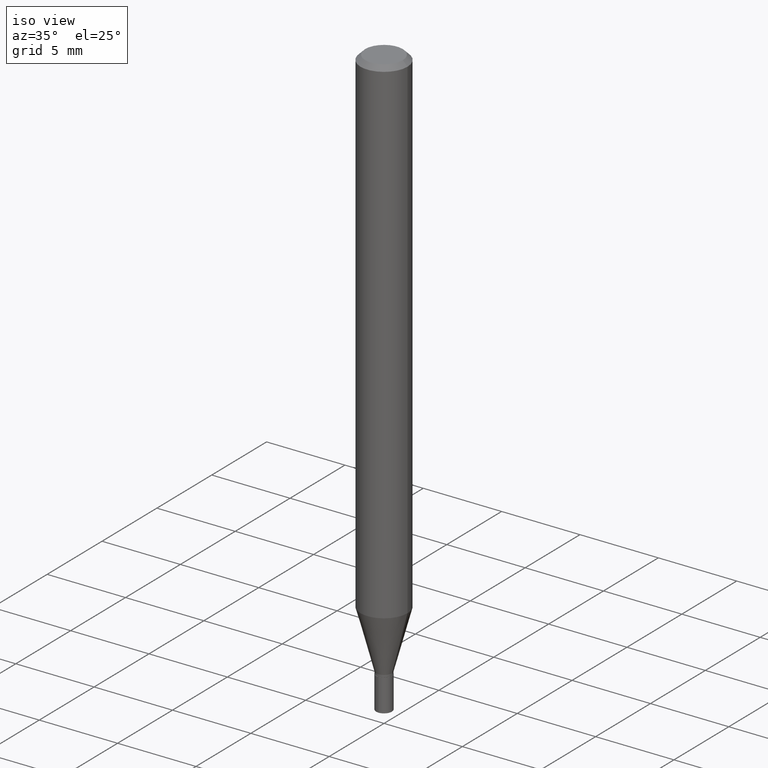
[diagram: clean part render]
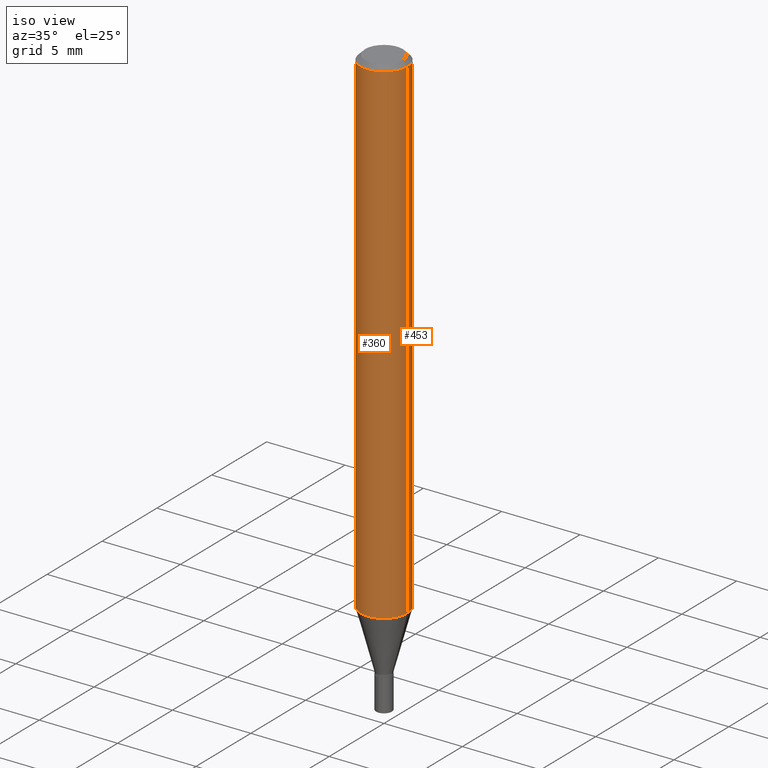
[diagram: same view with one multi-face feature highlighted, each face labeled with its STEP entity id]
A machine part, iso view. The highlighted faces form ONE feature: a constant-radius fillet chain: 2 tangent blend faces with common blend radius 1.4999 mm. The faces share edges in the B-rep.
Their STEP definitions:
[1] entity #360 (Cylinder):
#47 = DIRECTION ( 'NONE',  ( -2.445468806185136597E-29, 3.491481338843145583E-15, 1.000000000000000000 ) ) ;
#51 = ORIENTED_EDGE ( 'NONE', *, *, #279, .F. ) ;
#84 = ORIENTED_EDGE ( 'NONE', *, *, #186, .F. ) ;
#98 = DIRECTION ( 'NONE',  ( -2.445468806185136597E-29, 3.491481338843145583E-15, 1.000000000000000000 ) ) ;
#113 = DIRECTION ( 'NONE',  ( -2.445468806185136597E-29, 3.491481338843145583E-15, 1.000000000000000000 ) ) ;
#117 = ORIENTED_EDGE ( 'NONE', *, *, #483, .T. ) ;
#129 = CYLINDRICAL_SURFACE ( 'NONE', #166, 0.05905000000000007465 ) ;
#140 = CARTESIAN_POINT ( 'NONE',  ( -0.05904999999999999832, -1.788007513125965164E-15, -0.01181000000000007565 ) ) ;
#143 = VECTOR ( 'NONE', #339, 39.37007874015748143 ) ;
#156 = DIRECTION ( 'NONE',  ( 1.000000000000000000, -6.982962677686266711E-15, 4.876176775795936353E-29 ) ) ;
#163 = CARTESIAN_POINT ( 'NONE',  ( 2.888098660104664642E-31, -4.123439461173780879E-17, -0.01181000000000007565 ) ) ;
#166 = AXIS2_PLACEMENT_3D ( 'NONE', #172, #47, #156 ) ;
#172 = CARTESIAN_POINT ( 'NONE',  ( 0.000000000000000000, 0.000000000000000000, 0.000000000000000000 ) ) ;
#174 = CARTESIAN_POINT ( 'NONE',  ( 0.05905000000000015098, -4.786275548690248872E-15, -1.252743800722164513 ) ) ;
#177 = LINE ( 'NONE', #489, #415 ) ;
#186 = EDGE_CURVE ( 'NONE', #238, #309, #375, .T. ) ;
#199 = EDGE_LOOP ( 'NONE', ( #51, #117, #226, #84 ) ) ;
#226 = ORIENTED_EDGE ( 'NONE', *, *, #449, .T. ) ;
#238 = VERTEX_POINT ( 'NONE', #140 ) ;
#241 = DIRECTION ( 'NONE',  ( 1.000000000000000000, -6.982962677686266711E-15, 0.000000000000000000 ) ) ;
#249 = CARTESIAN_POINT ( 'NONE',  ( 0.05904999999999999832, -4.535783407291118600E-16, -0.01181000000000007565 ) ) ;
#262 = FACE_OUTER_BOUND ( 'NONE', #199, .T. ) ;
#279 = EDGE_CURVE ( 'NONE', #427, #238, #177, .T. ) ;
#280 = CARTESIAN_POINT ( 'NONE',  ( 0.05905000000000007465, -4.123439461173745750E-16, 2.879382386107504074E-30 ) ) ;
#309 = VERTEX_POINT ( 'NONE', #249 ) ;
#338 = DIRECTION ( 'NONE',  ( 1.000000000000000000, -6.982962677686271444E-15, 0.000000000000000000 ) ) ;
#339 = DIRECTION ( 'NONE',  ( -2.445468806185136877E-29, 3.491481338843145188E-15, 1.000000000000000000 ) ) ;
#342 = CIRCLE ( 'NONE', #354, 0.05905000000000015098 ) ;
#348 = CARTESIAN_POINT ( 'NONE',  ( -0.05905000000000015098, -3.954356117106533670E-15, -1.252743800722164513 ) ) ;
#354 = AXIS2_PLACEMENT_3D ( 'NONE', #455, #113, #338 ) ;
#360 = ADVANCED_FACE ( 'NONE', ( #262 ), #129, .T. ) ;
#363 = AXIS2_PLACEMENT_3D ( 'NONE', #163, #98, #241 ) ;
#375 = CIRCLE ( 'NONE', #363, 0.05904999999999999832 ) ;
#410 = LINE ( 'NONE', #280, #143 ) ;
#415 = VECTOR ( 'NONE', #452, 39.37007874015748143 ) ;
#427 = VERTEX_POINT ( 'NONE', #348 ) ;
#446 = VERTEX_POINT ( 'NONE', #174 ) ;
#449 = EDGE_CURVE ( 'NONE', #446, #309, #410, .T. ) ;
#452 = DIRECTION ( 'NONE',  ( -2.445468806185136877E-29, 3.491481338843145188E-15, 1.000000000000000000 ) ) ;
#455 = CARTESIAN_POINT ( 'NONE',  ( 3.063545886807862296E-29, -4.373931602572873162E-15, -1.252743800722164513 ) ) ;
#483 = EDGE_CURVE ( 'NONE', #427, #446, #342, .T. ) ;
#489 = CARTESIAN_POINT ( 'NONE',  ( -0.05905000000000007465, 4.195754854663396902E-16, -2.904631170795525395E-30 ) ) ;
[2] entity #453 (Cylinder):
#2 = CIRCLE ( 'NONE', #442, 0.05905000000000015098 ) ;
#5 = DIRECTION ( 'NONE',  ( -2.445468806185136597E-29, 3.491481338843145583E-15, 1.000000000000000000 ) ) ;
#75 = AXIS2_PLACEMENT_3D ( 'NONE', #372, #5, #151 ) ;
#125 = AXIS2_PLACEMENT_3D ( 'NONE', #167, #436, #471 ) ;
#140 = CARTESIAN_POINT ( 'NONE',  ( -0.05904999999999999832, -1.788007513125965164E-15, -0.01181000000000007565 ) ) ;
#143 = VECTOR ( 'NONE', #339, 39.37007874015748143 ) ;
#151 = DIRECTION ( 'NONE',  ( 1.000000000000000000, -6.982962677686266711E-15, 4.876176775795936353E-29 ) ) ;
#167 = CARTESIAN_POINT ( 'NONE',  ( 2.888098660104664642E-31, -4.123439461173780879E-17, -0.01181000000000007565 ) ) ;
#174 = CARTESIAN_POINT ( 'NONE',  ( 0.05905000000000015098, -4.786275548690248872E-15, -1.252743800722164513 ) ) ;
#177 = LINE ( 'NONE', #489, #415 ) ;
#184 = FACE_OUTER_BOUND ( 'NONE', #237, .T. ) ;
#188 = ORIENTED_EDGE ( 'NONE', *, *, #488, .T. ) ;
#222 = CYLINDRICAL_SURFACE ( 'NONE', #75, 0.05905000000000007465 ) ;
#237 = EDGE_LOOP ( 'NONE', ( #188, #245, #357, #393 ) ) ;
#238 = VERTEX_POINT ( 'NONE', #140 ) ;
#245 = ORIENTED_EDGE ( 'NONE', *, *, #279, .T. ) ;
#249 = CARTESIAN_POINT ( 'NONE',  ( 0.05904999999999999832, -4.535783407291118600E-16, -0.01181000000000007565 ) ) ;
#261 = CARTESIAN_POINT ( 'NONE',  ( 3.063545886807862296E-29, -4.373931602572873162E-15, -1.252743800722164513 ) ) ;
#279 = EDGE_CURVE ( 'NONE', #427, #238, #177, .T. ) ;
#280 = CARTESIAN_POINT ( 'NONE',  ( 0.05905000000000007465, -4.123439461173745750E-16, 2.879382386107504074E-30 ) ) ;
#283 = CIRCLE ( 'NONE', #125, 0.05904999999999999832 ) ;
#309 = VERTEX_POINT ( 'NONE', #249 ) ;
#339 = DIRECTION ( 'NONE',  ( -2.445468806185136877E-29, 3.491481338843145188E-15, 1.000000000000000000 ) ) ;
#348 = CARTESIAN_POINT ( 'NONE',  ( -0.05905000000000015098, -3.954356117106533670E-15, -1.252743800722164513 ) ) ;
#357 = ORIENTED_EDGE ( 'NONE', *, *, #432, .F. ) ;
#372 = CARTESIAN_POINT ( 'NONE',  ( 0.000000000000000000, 0.000000000000000000, 0.000000000000000000 ) ) ;
#374 = DIRECTION ( 'NONE',  ( 1.000000000000000000, -6.982962677686271444E-15, 0.000000000000000000 ) ) ;
#393 = ORIENTED_EDGE ( 'NONE', *, *, #449, .F. ) ;
#410 = LINE ( 'NONE', #280, #143 ) ;
#415 = VECTOR ( 'NONE', #452, 39.37007874015748143 ) ;
#421 = DIRECTION ( 'NONE',  ( -2.445468806185136597E-29, 3.491481338843145583E-15, 1.000000000000000000 ) ) ;
#427 = VERTEX_POINT ( 'NONE', #348 ) ;
#432 = EDGE_CURVE ( 'NONE', #309, #238, #283, .T. ) ;
#436 = DIRECTION ( 'NONE',  ( -2.445468806185136597E-29, 3.491481338843145583E-15, 1.000000000000000000 ) ) ;
#442 = AXIS2_PLACEMENT_3D ( 'NONE', #261, #421, #374 ) ;
#446 = VERTEX_POINT ( 'NONE', #174 ) ;
#449 = EDGE_CURVE ( 'NONE', #446, #309, #410, .T. ) ;
#452 = DIRECTION ( 'NONE',  ( -2.445468806185136877E-29, 3.491481338843145188E-15, 1.000000000000000000 ) ) ;
#453 = ADVANCED_FACE ( 'NONE', ( #184 ), #222, .T. ) ;
#471 = DIRECTION ( 'NONE',  ( 1.000000000000000000, -6.982962677686266711E-15, 0.000000000000000000 ) ) ;
#488 = EDGE_CURVE ( 'NONE', #446, #427, #2, .T. ) ;
#489 = CARTESIAN_POINT ( 'NONE',  ( -0.05905000000000007465, 4.195754854663396902E-16, -2.904631170795525395E-30 ) ) ;